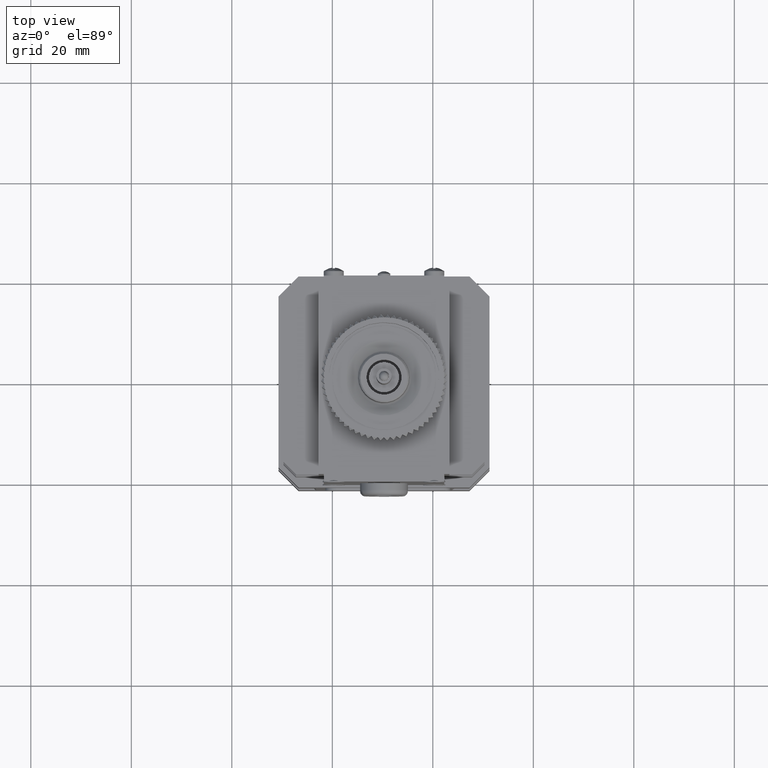
[diagram: clean part render]
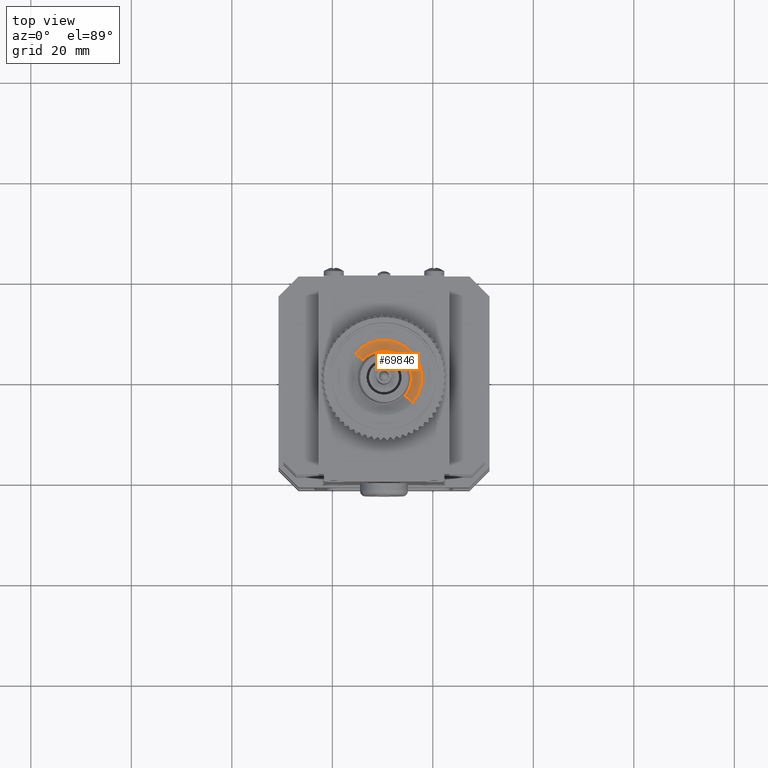
[diagram: same view with one face highlighted and labeled with its STEP entity id]
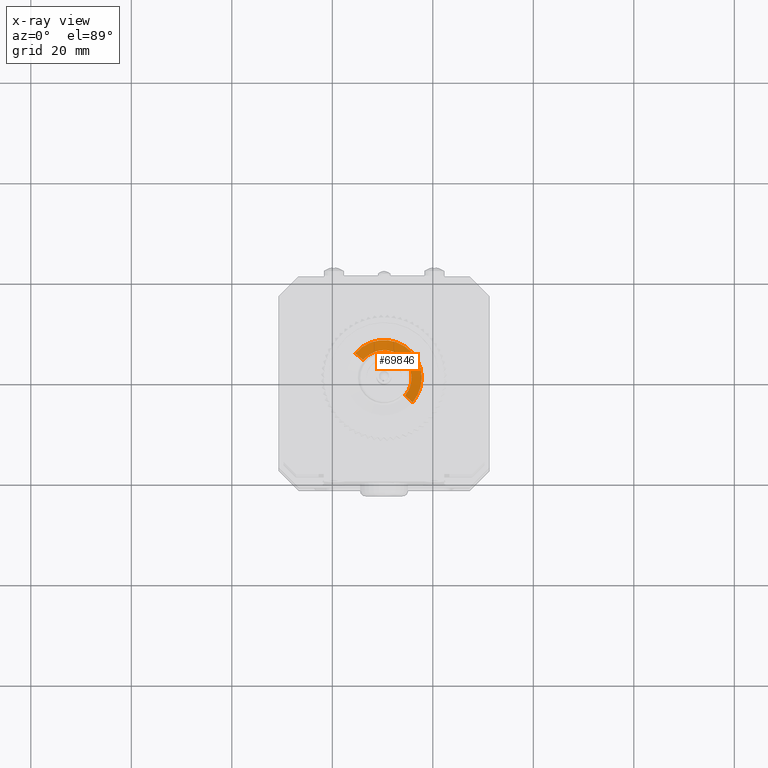
[diagram: x-ray of the same camera — body ghosted, the highlighted face saturated]
A machine part, top view. The second image highlights one B-rep face of the part: STEP entity #69846.
The next image is the same camera in x-ray: the body ghosted, the highlighted face saturated — about 0% of this face is hidden behind the body in this view.
In plain terms, the highlighted conical surface has half-angle 76.306 deg.
Its self-contained STEP definition (entity closure, byte-faithful):
#69733 = ORIENTED_EDGE ( 'NONE', *, *, #69827, .T. ) ;
#69784 = ORIENTED_EDGE ( 'NONE', *, *, #69785, .F. ) ;
#69785 = EDGE_CURVE ( 'NONE', #69794, #69834, #72565, .T. ) ;
#69792 = EDGE_CURVE ( 'NONE', #69815, #69794, #72614, .T. ) ;
#69794 = VERTEX_POINT ( 'NONE', #72609 ) ;
#69815 = VERTEX_POINT ( 'NONE', #72723 ) ;
#69827 = EDGE_CURVE ( 'NONE', #69815, #69828, #72830, .T. ) ;
#69828 = VERTEX_POINT ( 'NONE', #72825 ) ;
#69830 = ORIENTED_EDGE ( 'NONE', *, *, #69832, .T. ) ;
#69832 = EDGE_CURVE ( 'NONE', #69828, #69834, #72821, .T. ) ;
#69834 = VERTEX_POINT ( 'NONE', #72914 ) ;
#69846 = ADVANCED_FACE ( 'NONE', ( #72891 ), #72933, .F. ) ;
#69847 = EDGE_LOOP ( 'NONE', ( #69848, #69733, #69830, #69784 ) ) ;
#69848 = ORIENTED_EDGE ( 'NONE', *, *, #69792, .F. ) ;
#72562 = DIRECTION ( 'NONE',  ( -0.7386502917488051400, 0.6311490968826122300, 0.2367415552953637500 ) ) ;
#72563 = VECTOR ( 'NONE', #72562, 39.37007874015748900 ) ;
#72564 = CARTESIAN_POINT ( 'NONE',  ( -2.121712214775043100, -0.6698030156806842300, 1.633673541380904700 ) ) ;
#72565 = LINE ( 'NONE', #72564, #72563 ) ;
#72609 = CARTESIAN_POINT ( 'NONE',  ( -2.121712214775043100, -0.6698030156806841200, 1.633673541380904700 ) ) ;
#72611 = DIRECTION ( 'NONE',  ( -0.7602625323303163800, 0.6496159495692008800, 0.0000000000000000000 ) ) ;
#72612 = DIRECTION ( 'NONE',  ( 1.395368195988844700E-016, -1.653950414126637300E-016, 1.000000000000000000 ) ) ;
#72613 = AXIS2_PLACEMENT_3D ( 'NONE', #72623, #72612, #72611 ) ;
#72614 = CIRCLE ( 'NONE', #72613, 0.2163266386660686900 ) ;
#72623 = CARTESIAN_POINT ( 'NONE',  ( -1.957247176652272500, -0.8103322504748558000, 1.633673541380904700 ) ) ;
#72723 = CARTESIAN_POINT ( 'NONE',  ( -1.792782138529502000, -0.9508614852690272500, 1.633673541380904700 ) ) ;
#72821 = CIRCLE ( 'NONE', #72922, 0.2952755905511810800 ) ;
#72825 = CARTESIAN_POINT ( 'NONE',  ( -1.732760208444502000, -1.002147983615367900, 1.652910906124253100 ) ) ;
#72826 = DIRECTION ( 'NONE',  ( 0.7386502917488052500, -0.6311490968826124500, 0.2367415552953632500 ) ) ;
#72827 = VECTOR ( 'NONE', #72826, 39.37007874015748100 ) ;
#72828 = CARTESIAN_POINT ( 'NONE',  ( -1.792782138529502000, -0.9508614852690274700, 1.633673541380904700 ) ) ;
#72830 = LINE ( 'NONE', #72828, #72827 ) ;
#72891 = FACE_OUTER_BOUND ( 'NONE', #69847, .T. ) ;
#72914 = CARTESIAN_POINT ( 'NONE',  ( -2.181734144860043600, -0.6185165173343435400, 1.652910906124253100 ) ) ;
#72917 = DIRECTION ( 'NONE',  ( -0.7602625323303164900, 0.6496159495692007700, 0.0000000000000000000 ) ) ;
#72919 = DIRECTION ( 'NONE',  ( 1.395368195988844700E-016, -1.653950414126637300E-016, 1.000000000000000000 ) ) ;
#72920 = CARTESIAN_POINT ( 'NONE',  ( -1.957247176652272500, -0.8103322504748558000, 1.652910906124253100 ) ) ;
#72922 = AXIS2_PLACEMENT_3D ( 'NONE', #72920, #72919, #72917 ) ;
#72929 = DIRECTION ( 'NONE',  ( -0.7602625323303163800, 0.6496159495692008800, 0.0000000000000000000 ) ) ;
#72930 = DIRECTION ( 'NONE',  ( 1.395368195988844700E-016, -1.653950414126637300E-016, 1.000000000000000000 ) ) ;
#72932 = AXIS2_PLACEMENT_3D ( 'NONE', #72936, #72930, #72929 ) ;
#72933 = CONICAL_SURFACE ( 'NONE', #72932, 0.2163266386660686900, 1.331785637405019700 ) ;
#72936 = CARTESIAN_POINT ( 'NONE',  ( -1.957247176652272500, -0.8103322504748558000, 1.633673541380904700 ) ) ;